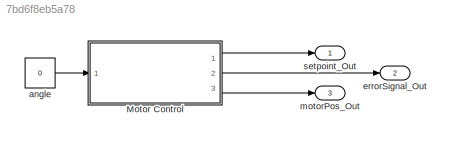
MODEL slx_7bd6f8eb5a78
KIND model
CONFIG AbsTol = auto
CONFIG EnableMultiTasking = on
CONFIG FixedStep = 0.001
CONFIG MaxStep = auto
CONFIG MinStep = auto
CONFIG RelTol = 1e-3
CONFIG SampleTimeConstraint = Unconstrained
CONFIG Solver = ode3
CONFIG SolverName = ode3
CONFIG StartTime = 0.0
CONFIG StopTime = inf
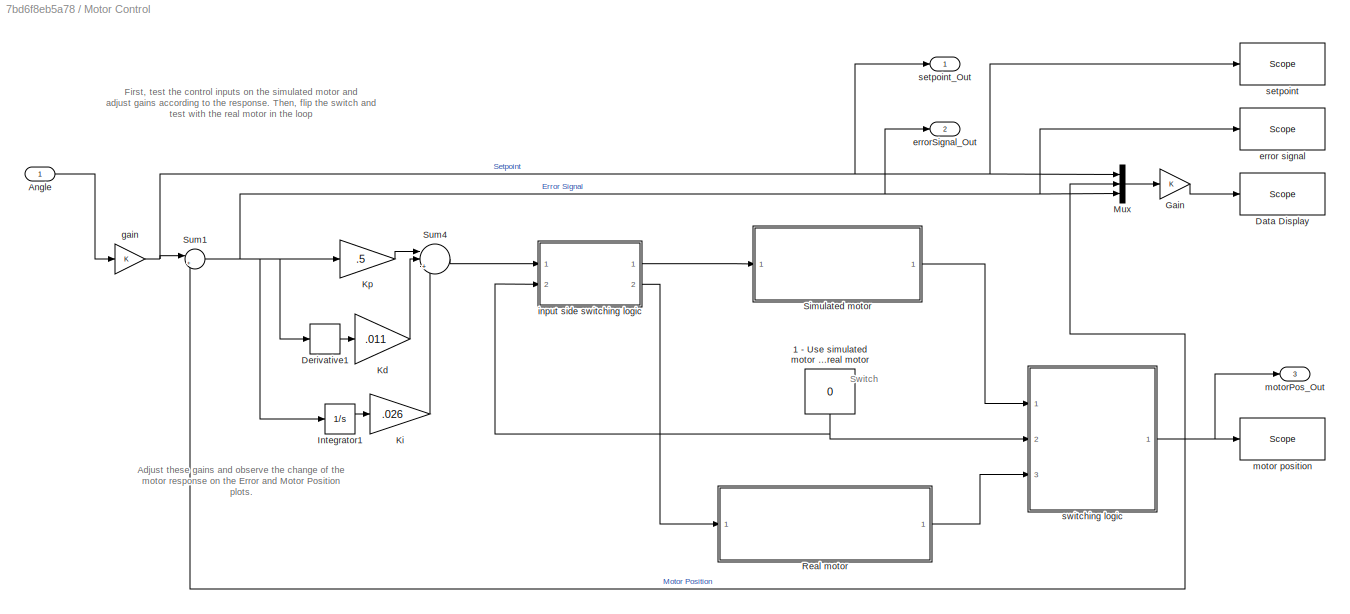
BLOCK [SubSystem] Motor Control
  Ports = [1, 3]
  RequestExecContextInheritance = off
  Variant = off
BLOCK [Constant] Motor Control/1 - Use simulated motor 0 - Use real motor
  Value = 0
BLOCK [Inport] Motor Control/Angle
  IconDisplay = Port number
BLOCK [Reference] Motor Control/Data Display  REF=slrtlib/Displays and
Logging/Scope 
  Ports = [1]
  SourceBlock = slrtlib/Displays and\nLogging/Scope
  SourceProductBaseCode = XP
  SourceProductName = Simulink Real-Time
  SourceType = xpcscopeblock
BLOCK [Derivative] Motor Control/Derivative1
BLOCK [Gain] Motor Control/Gain
  OutDataTypeStr = Inherit: Inherit via internal rule
  ParamDataTypeStr = Inherit: Inherit via internal rule
  SaturateOnIntegerOverflow = off
BLOCK [Integrator] Motor Control/Integrator1
  Ports = [1, 1]
BLOCK [Gain] Motor Control/Kd
  Gain = .011
  OutDataTypeStr = Inherit: Inherit via internal rule
  ParamDataTypeStr = Inherit: Inherit via internal rule
  SaturateOnIntegerOverflow = off
BLOCK [Gain] Motor Control/Ki
  Gain = .026
  OutDataTypeStr = Inherit: Inherit via internal rule
  ParamDataTypeStr = Inherit: Inherit via internal rule
  SaturateOnIntegerOverflow = off
BLOCK [Gain] Motor Control/Kp
  Gain = .5
  OutDataTypeStr = Inherit: Inherit via internal rule
  ParamDataTypeStr = Inherit: Inherit via internal rule
  SaturateOnIntegerOverflow = off
BLOCK [Mux] Motor Control/Mux
  DisplayOption = bar
  Inputs = 3
  Ports = [3, 1]
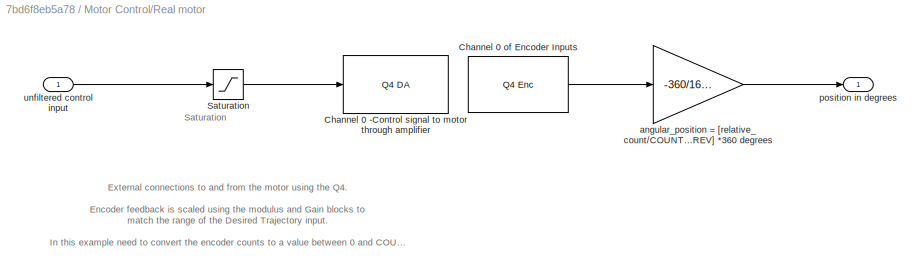
BLOCK [SubSystem] Motor Control/Real motor
  Ports = [1, 1]
  RequestExecContextInheritance = off
  Variant = off
BLOCK [Reference] Motor Control/Real motor/Channel 0 -Control signal to motor through amplifier   REF=xpcquanserlib/D//A/Q4 DA 
  Ports = [1]
  SourceBlock = xpcquanserlib/D//A/Q4 DA
  SourceProductBaseCode = XP
  SourceProductName = Simulink Real-Time
  SourceType = quanser_q4_da
BLOCK [Reference] Motor Control/Real motor/Channel 0 of Encoder Inputs   REF=xpcquanserlib/Incremental
Encoder/Q4 Enc 
  Ports = [0, 1]
  SourceBlock = xpcquanserlib/Incremental\nEncoder/Q4 Enc
  SourceProductBaseCode = XP
  SourceProductName = Simulink Real-Time
  SourceType = quanser_q4_enc
BLOCK [Saturate] Motor Control/Real motor/Saturation
  InputPortMap = u0
  LowerLimit = -10
  Ports = [1, 1]
  UpperLimit = 10
BLOCK [Gain] Motor Control/Real motor/angular_position = [relative_count//COUNTS_PER_REV] *360 degrees
  Gain = -360/1600
  OutDataTypeStr = Inherit: Inherit via internal rule
  ParamDataTypeStr = Inherit: Inherit via internal rule
  SaturateOnIntegerOverflow = off
BLOCK [Outport] Motor Control/Real motor/position in degrees
  IconDisplay = Port number
BLOCK [Inport] Motor Control/Real motor/unfiltered control input
  IconDisplay = Port number
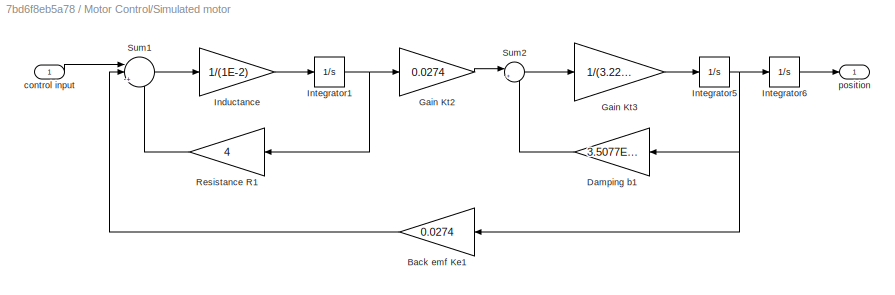
BLOCK [SubSystem] Motor Control/Simulated motor
  Ports = [1, 1]
  RequestExecContextInheritance = off
  Variant = off
BLOCK [Gain] Motor Control/Simulated motor/Back emf Ke1
  Gain = 0.0274
  OutDataTypeStr = Inherit: Inherit via internal rule
  ParamDataTypeStr = Inherit: Inherit via internal rule
  SaturateOnIntegerOverflow = off
BLOCK [Gain] Motor Control/Simulated motor/Damping b1
  Gain = 3.5077E-6
  OutDataTypeStr = Inherit: Inherit via internal rule
  ParamDataTypeStr = Inherit: Inherit via internal rule
  SaturateOnIntegerOverflow = off
BLOCK [Gain] Motor Control/Simulated motor/Gain Kt2
  Gain = 0.0274
  OutDataTypeStr = Inherit: Inherit via internal rule
  ParamDataTypeStr = Inherit: Inherit via internal rule
  SaturateOnIntegerOverflow = off
BLOCK [Gain] Motor Control/Simulated motor/Gain Kt3
  Gain = 1/(3.2284E-6)
  OutDataTypeStr = Inherit: Inherit via internal rule
  ParamDataTypeStr = Inherit: Inherit via internal rule
  SaturateOnIntegerOverflow = off
BLOCK [Gain] Motor Control/Simulated motor/Inductance
  Gain = 1/(1E-2)
  OutDataTypeStr = Inherit: Inherit via internal rule
  ParamDataTypeStr = Inherit: Inherit via internal rule
  SaturateOnIntegerOverflow = off
BLOCK [Integrator] Motor Control/Simulated motor/Integrator1
  Ports = [1, 1]
BLOCK [Integrator] Motor Control/Simulated motor/Integrator5
  Ports = [1, 1]
BLOCK [Integrator] Motor Control/Simulated motor/Integrator6
  Ports = [1, 1]
BLOCK [Gain] Motor Control/Simulated motor/Resistance R1
  Gain = 4
  OutDataTypeStr = Inherit: Inherit via internal rule
  ParamDataTypeStr = Inherit: Inherit via internal rule
  SaturateOnIntegerOverflow = off
BLOCK [Sum] Motor Control/Simulated motor/Sum1
  IconShape = round
  InputSameDT = off
  Inputs = ||+--
  OutDataTypeStr = Inherit: Inherit via internal rule
  Ports = [3, 1]
  SaturateOnIntegerOverflow = off
BLOCK [Sum] Motor Control/Simulated motor/Sum2
  IconShape = round
  InputSameDT = off
  Inputs = |+-
  OutDataTypeStr = Inherit: Inherit via internal rule
  Ports = [2, 1]
  SaturateOnIntegerOverflow = off
BLOCK [Inport] Motor Control/Simulated motor/control input
  IconDisplay = Port number
BLOCK [Outport] Motor Control/Simulated motor/position
  IconDisplay = Port number
BLOCK [Sum] Motor Control/Sum1
  IconShape = round
  InputSameDT = off
  Inputs = |+-
  OutDataTypeStr = Inherit: Inherit via internal rule
  Ports = [2, 1]
  SaturateOnIntegerOverflow = off
BLOCK [Sum] Motor Control/Sum4
  IconShape = round
  InputSameDT = off
  Inputs = ||+++
  OutDataTypeStr = Inherit: Inherit via internal rule
  Ports = [3, 1]
  SaturateOnIntegerOverflow = off
BLOCK [Reference] Motor Control/error signal  REF=slrtlib/Displays and
Logging/Scope 
  Ports = [1]
  SourceBlock = slrtlib/Displays and\nLogging/Scope
  SourceProductBaseCode = XP
  SourceProductName = Simulink Real-Time
  SourceType = xpcscopeblock
BLOCK [Outport] Motor Control/errorSignal_Out
  IconDisplay = Port number
  Port = 2
BLOCK [Gain] Motor Control/gain
  OutDataTypeStr = Inherit: Inherit via internal rule
  ParamDataTypeStr = Inherit: Inherit via internal rule
  SaturateOnIntegerOverflow = off
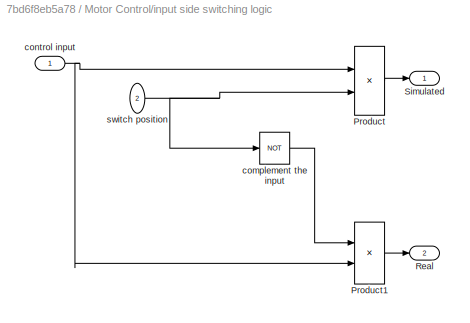
BLOCK [SubSystem] Motor Control/input side switching logic
  Ports = [2, 2]
  RequestExecContextInheritance = off
  Variant = off
BLOCK [Product] Motor Control/input side switching logic/Product
  InputSameDT = off
  OutDataTypeStr = Inherit: Inherit via internal rule
  Ports = [2, 1]
  SaturateOnIntegerOverflow = off
BLOCK [Product] Motor Control/input side switching logic/Product1
  InputSameDT = off
  OutDataTypeStr = Inherit: Inherit via internal rule
  Ports = [2, 1]
  SaturateOnIntegerOverflow = off
BLOCK [Outport] Motor Control/input side switching logic/Real
  IconDisplay = Port number
  Port = 2
BLOCK [Outport] Motor Control/input side switching logic/Simulated
  IconDisplay = Port number
BLOCK [Logic] Motor Control/input side switching logic/complement the input
  AllPortsSameDT = off
  Operator = NOT
  OutDataTypeStr = boolean
  Ports = [1, 1]
BLOCK [Inport] Motor Control/input side switching logic/control input
  IconDisplay = Port number
BLOCK [Inport] Motor Control/input side switching logic/switch position
  IconDisplay = Port number
  Port = 2
BLOCK [Reference] Motor Control/motor position  REF=slrtlib/Displays and
Logging/Scope 
  Ports = [1]
  SourceBlock = slrtlib/Displays and\nLogging/Scope
  SourceProductBaseCode = XP
  SourceProductName = Simulink Real-Time
  SourceType = xpcscopeblock
BLOCK [Outport] Motor Control/motorPos_Out
  IconDisplay = Port number
  Port = 3
BLOCK [Reference] Motor Control/setpoint  REF=slrtlib/Displays and
Logging/Scope 
  Ports = [1]
  SourceBlock = slrtlib/Displays and\nLogging/Scope
  SourceProductBaseCode = XP
  SourceProductName = Simulink Real-Time
  SourceType = xpcscopeblock
BLOCK [Outport] Motor Control/setpoint_Out
  IconDisplay = Port number
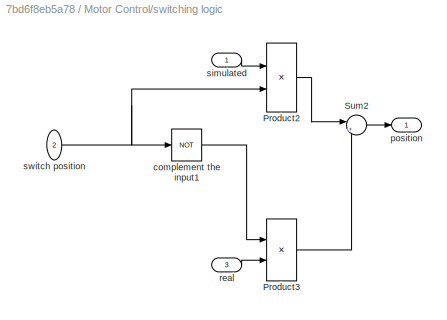
BLOCK [SubSystem] Motor Control/switching logic
  Ports = [3, 1]
  RequestExecContextInheritance = off
  Variant = off
BLOCK [Product] Motor Control/switching logic/Product2
  InputSameDT = off
  OutDataTypeStr = Inherit: Inherit via internal rule
  Ports = [2, 1]
  SaturateOnIntegerOverflow = off
BLOCK [Product] Motor Control/switching logic/Product3
  InputSameDT = off
  OutDataTypeStr = Inherit: Inherit via internal rule
  Ports = [2, 1]
  SaturateOnIntegerOverflow = off
BLOCK [Sum] Motor Control/switching logic/Sum2
  IconShape = round
  InputSameDT = off
  Inputs = |++
  OutDataTypeStr = Inherit: Inherit via internal rule
  Ports = [2, 1]
  SaturateOnIntegerOverflow = off
BLOCK [Logic] Motor Control/switching logic/complement the input1
  AllPortsSameDT = off
  Operator = NOT
  OutDataTypeStr = boolean
  Ports = [1, 1]
BLOCK [Outport] Motor Control/switching logic/position
  IconDisplay = Port number
BLOCK [Inport] Motor Control/switching logic/real
  IconDisplay = Port number
  Port = 3
BLOCK [Inport] Motor Control/switching logic/simulated
  IconDisplay = Port number
BLOCK [Inport] Motor Control/switching logic/switch position
  IconDisplay = Port number
  Port = 2
BLOCK [Constant] angle
  Value = 0
BLOCK [Outport] errorSignal_Out
  IconDisplay = Port number
  Port = 2
BLOCK [Outport] motorPos_Out
  IconDisplay = Port number
  Port = 3
BLOCK [Outport] setpoint_Out
  IconDisplay = Port number
ANNOTATION Motor Control: Adjust these gains and observe the change of the motor response on the Error and Motor Position plots.
ANNOTATION Motor Control: First, test the control inputs on the simulated motor and adjust gains according to the response. Then, flip the switch and test with the real motor in the loop
ANNOTATION Motor Control: Switch
ANNOTATION Motor Control/Real motor: External connections to and from the motor using the Q4. Encoder feedback is scaled using the modulus and Gain blocks to match the range of the Desired Trajectory input. In this example need to convert the encoder counts to a value between 0 and COUNTS_PER_REV. Further, the count obtained for that revolution needs to be scaled to an angle feedback (between 0 and 360 degrees), which is the purpose ...<+18ch>
ANNOTATION Motor Control/Real motor: Saturation
NET Motor Control/1 - Use simulated motor 0 - Use real motor:1 -> Motor Control/input side switching logic:2, Motor Control/switching logic:2
LINE Motor Control/Angle:1 -> Motor Control/gain:1
LINE Motor Control/Derivative1:1 -> Motor Control/Kd:1
LINE Motor Control/Gain:1 -> Motor Control/Data Display:1
LINE Motor Control/Integrator1:1 -> Motor Control/Ki:1
LINE Motor Control/Kd:1 -> Motor Control/Sum4:2
LINE Motor Control/Ki:1 -> Motor Control/Sum4:3
LINE Motor Control/Kp:1 -> Motor Control/Sum4:1
LINE Motor Control/Mux:1 -> Motor Control/Gain:1
LINE Motor Control/Real motor/Channel 0 of Encoder Inputs :1 -> Motor Control/Real motor/angular_position = [relative_count//COUNTS_PER_REV] *360 degrees:1
LINE Motor Control/Real motor/Saturation:1 -> Motor Control/Real motor/Channel 0 -Control signal to motor through amplifier :1
LINE Motor Control/Real motor/angular_position = [relative_count//COUNTS_PER_REV] *360 degrees:1 -> Motor Control/Real motor/position in degrees:1
LINE Motor Control/Real motor/unfiltered control input:1 -> Motor Control/Real motor/Saturation:1
LINE Motor Control/Real motor:1 -> Motor Control/switching logic:3
LINE Motor Control/Simulated motor/Back emf Ke1:1 -> Motor Control/Simulated motor/Sum1:2
LINE Motor Control/Simulated motor/Damping b1:1 -> Motor Control/Simulated motor/Sum2:2
LINE Motor Control/Simulated motor/Gain Kt2:1 -> Motor Control/Simulated motor/Sum2:1
LINE Motor Control/Simulated motor/Gain Kt3:1 -> Motor Control/Simulated motor/Integrator5:1
LINE Motor Control/Simulated motor/Inductance:1 -> Motor Control/Simulated motor/Integrator1:1
NET Motor Control/Simulated motor/Integrator1:1 -> Motor Control/Simulated motor/Gain Kt2:1, Motor Control/Simulated motor/Resistance R1:1
NET Motor Control/Simulated motor/Integrator5:1 -> Motor Control/Simulated motor/Back emf Ke1:1, Motor Control/Simulated motor/Damping b1:1, Motor Control/Simulated motor/Integrator6:1
LINE Motor Control/Simulated motor/Integrator6:1 -> Motor Control/Simulated motor/position:1
LINE Motor Control/Simulated motor/Resistance R1:1 -> Motor Control/Simulated motor/Sum1:3
LINE Motor Control/Simulated motor/Sum1:1 -> Motor Control/Simulated motor/Inductance:1
LINE Motor Control/Simulated motor/Sum2:1 -> Motor Control/Simulated motor/Gain Kt3:1
LINE Motor Control/Simulated motor/control input:1 -> Motor Control/Simulated motor/Sum1:1
LINE Motor Control/Simulated motor:1 -> Motor Control/switching logic:1
NET Motor Control/Sum1:1 -> Motor Control/Derivative1:1, Motor Control/Integrator1:1, Motor Control/Kp:1, Motor Control/Mux:3, Motor Control/error signal:1, Motor Control/errorSignal_Out:1
LINE Motor Control/Sum4:1 -> Motor Control/input side switching logic:1
NET Motor Control/gain:1 -> Motor Control/Mux:1, Motor Control/Sum1:1, Motor Control/setpoint:1, Motor Control/setpoint_Out:1
LINE Motor Control/input side switching logic/Product1:1 -> Motor Control/input side switching logic/Real:1
LINE Motor Control/input side switching logic/Product:1 -> Motor Control/input side switching logic/Simulated:1
LINE Motor Control/input side switching logic/complement the input:1 -> Motor Control/input side switching logic/Product1:1
NET Motor Control/input side switching logic/control input:1 -> Motor Control/input side switching logic/Product1:2, Motor Control/input side switching logic/Product:1
NET Motor Control/input side switching logic/switch position:1 -> Motor Control/input side switching logic/Product:2, Motor Control/input side switching logic/complement the input:1
LINE Motor Control/input side switching logic:1 -> Motor Control/Simulated motor:1
LINE Motor Control/input side switching logic:2 -> Motor Control/Real motor:1
LINE Motor Control/switching logic/Product2:1 -> Motor Control/switching logic/Sum2:1
LINE Motor Control/switching logic/Product3:1 -> Motor Control/switching logic/Sum2:2
LINE Motor Control/switching logic/Sum2:1 -> Motor Control/switching logic/position:1
LINE Motor Control/switching logic/complement the input1:1 -> Motor Control/switching logic/Product3:1
LINE Motor Control/switching logic/real:1 -> Motor Control/switching logic/Product3:2
LINE Motor Control/switching logic/simulated:1 -> Motor Control/switching logic/Product2:1
NET Motor Control/switching logic/switch position:1 -> Motor Control/switching logic/Product2:2, Motor Control/switching logic/complement the input1:1
NET Motor Control/switching logic:1 -> Motor Control/Mux:2, Motor Control/Sum1:2, Motor Control/motor position:1, Motor Control/motorPos_Out:1
LINE Motor Control:1 -> setpoint_Out:1
LINE Motor Control:2 -> errorSignal_Out:1
LINE Motor Control:3 -> motorPos_Out:1
LINE angle:1 -> Motor Control:1
note: NET lines group one-source signal fan-out (src -> all destinations, sorted); 1:1 wires keep LINE
